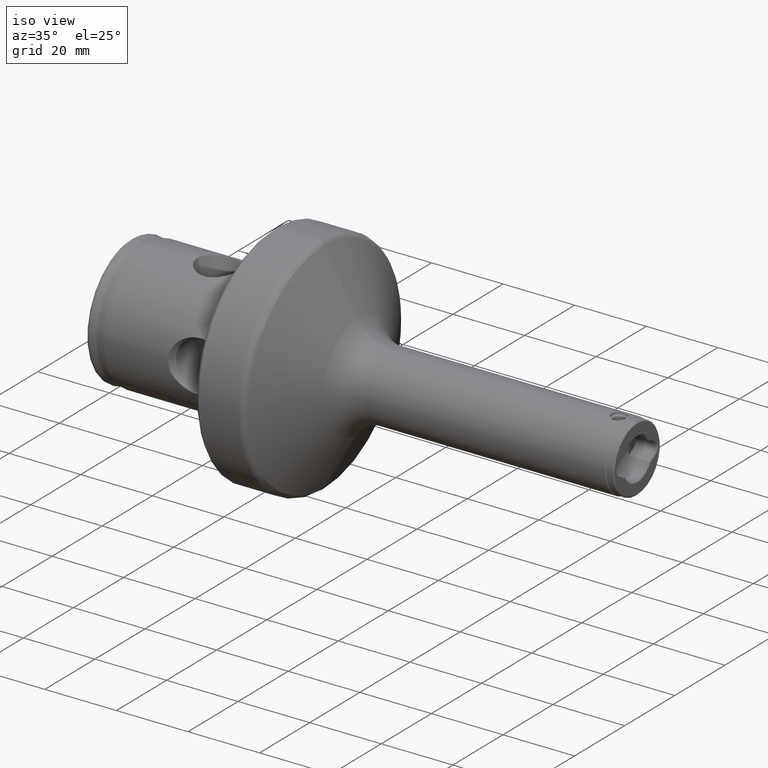
[diagram: clean part render]
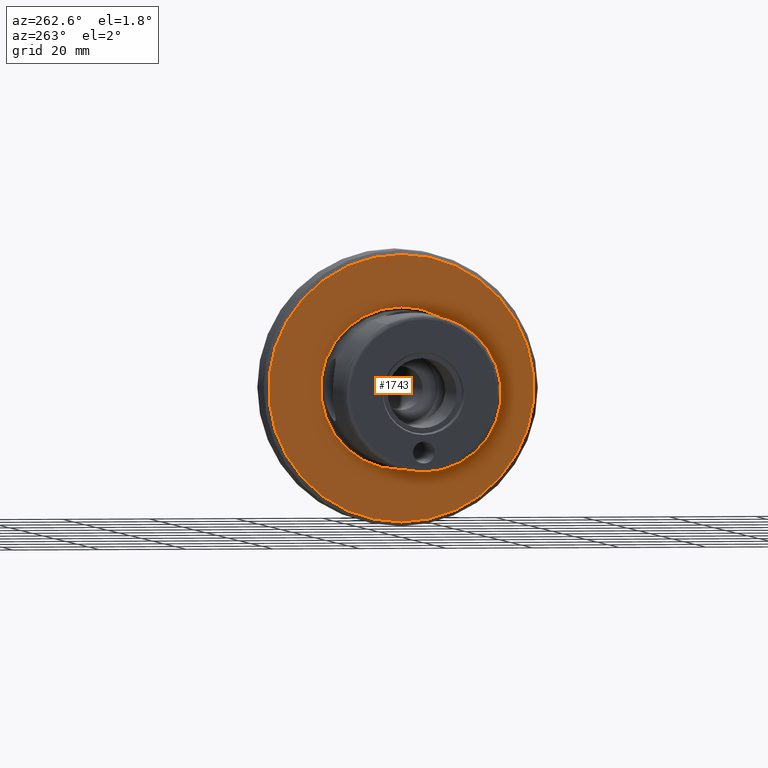
[diagram: tour spotlight — one face highlighted and labeled with its STEP entity id]
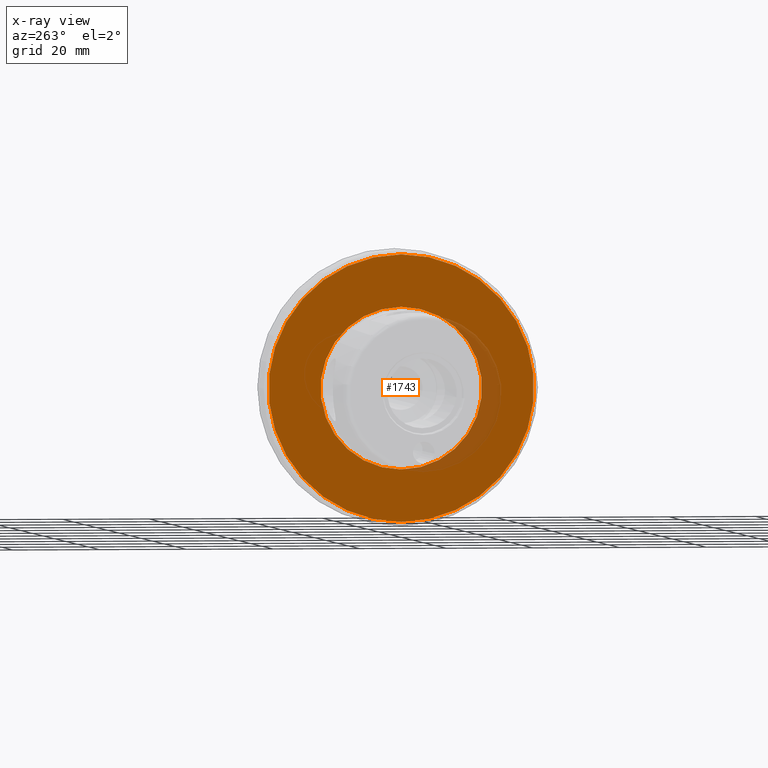
[diagram: x-ray of the same camera — body ghosted, this tour face saturated]
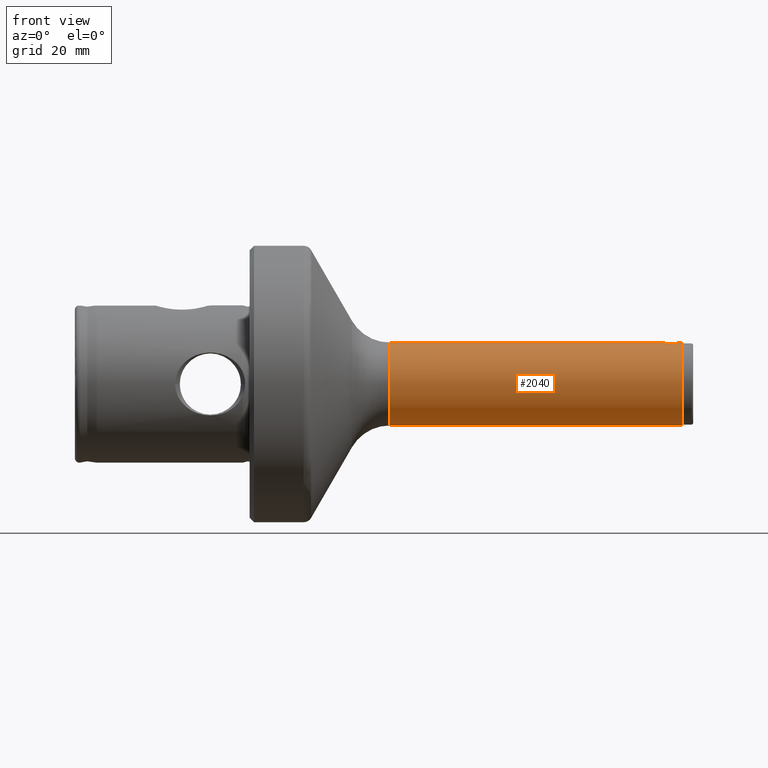
[diagram: tour spotlight — one face highlighted and labeled with its STEP entity id]
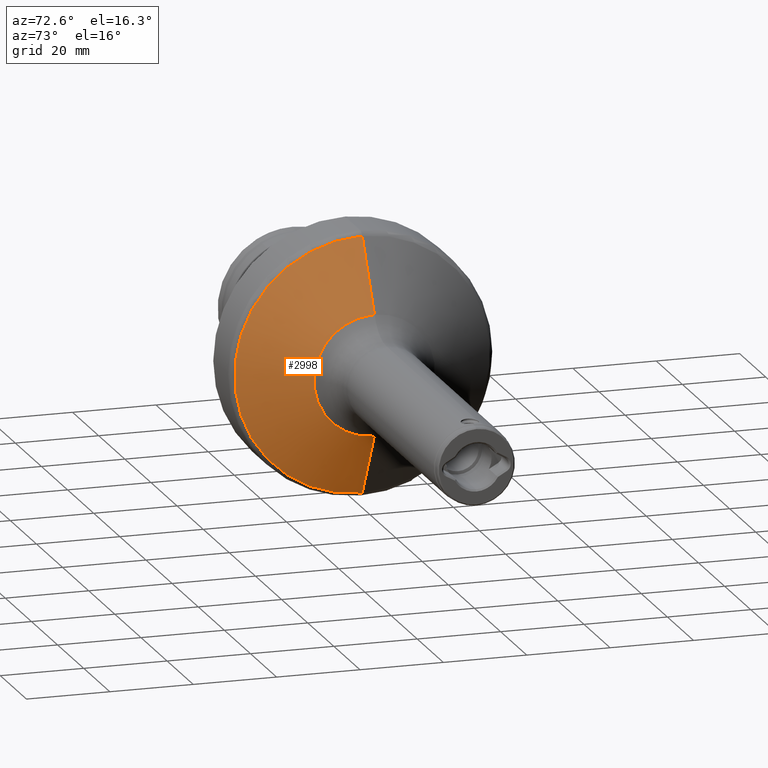
[diagram: tour spotlight — one face highlighted and labeled with its STEP entity id]
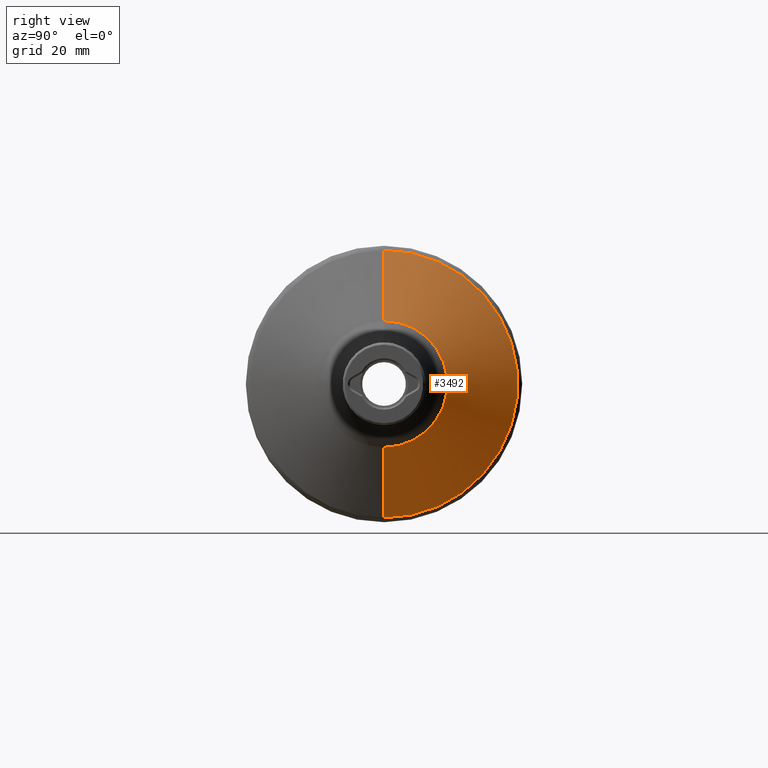
[diagram: tour spotlight — one face highlighted and labeled with its STEP entity id]
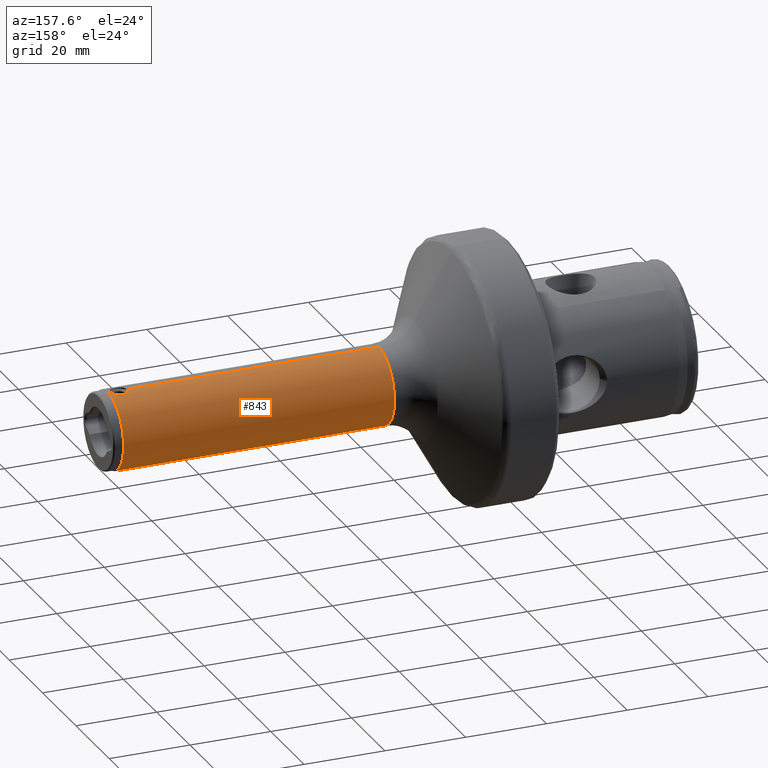
[diagram: tour spotlight — one face highlighted and labeled with its STEP entity id]
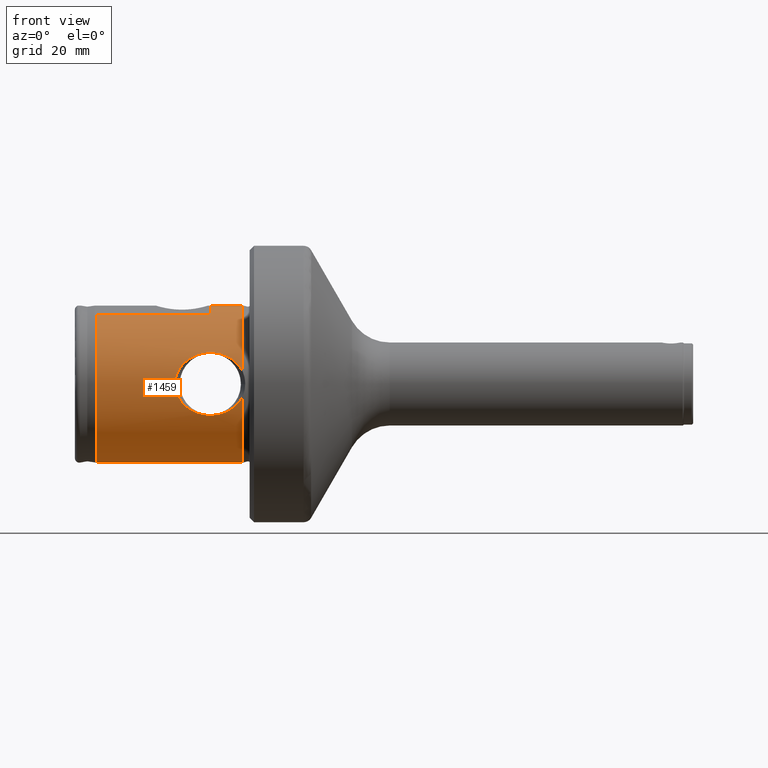
[diagram: tour spotlight — one face highlighted and labeled with its STEP entity id]
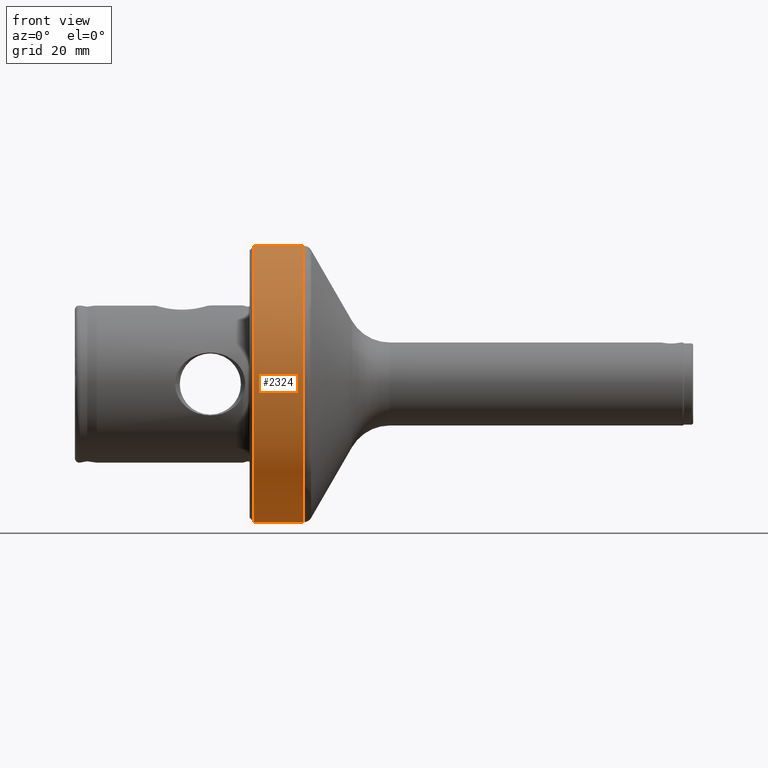
[diagram: tour spotlight — one face highlighted and labeled with its STEP entity id]
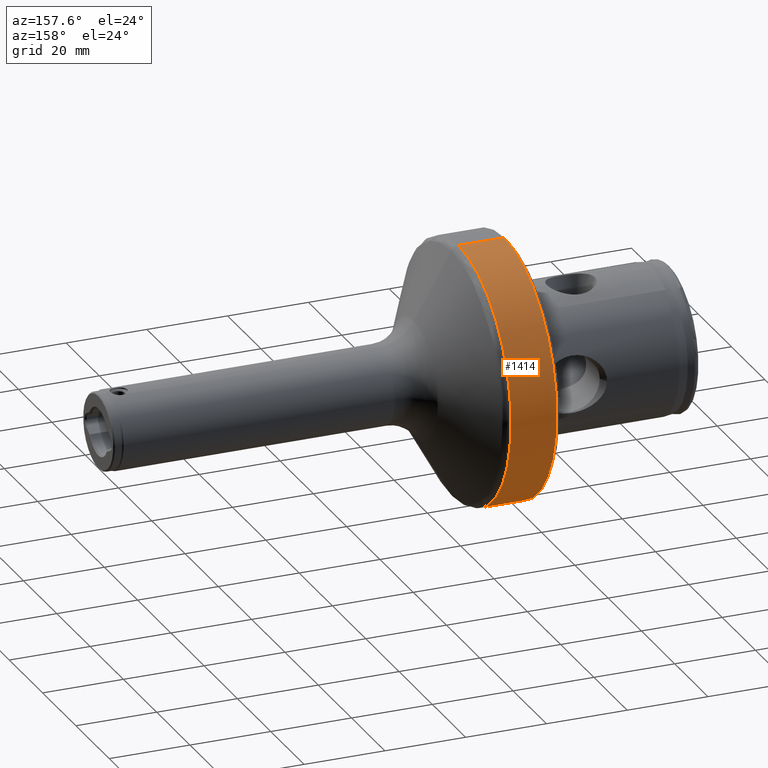
[diagram: tour spotlight — one face highlighted and labeled with its STEP entity id]
A machine part: a face-by-face anatomy tour. The part has 108 B-rep faces; the first image is the clean iso view, then the 8 largest visible faces are spotlighted one at a time (largest first), each with its STEP entity span.

Face 1 — auxiliary view, entity #1743. An x-ray twin of the same camera follows (body ghosted, this face saturated) — the face is partly hidden behind the body. In plain terms, the highlighted planar face has unit normal (1, 0, 0).
Definition (entity closure, byte-faithful):
#193 = CARTESIAN_POINT ( 'NONE',  ( 40.00000000000000000, 3.812937809145284600E-015, 30.63500000000000200 ) ) ;
#246 = CARTESIAN_POINT ( 'NONE',  ( 40.00000000000000000, 0.0000000000000000000, 0.0000000000000000000 ) ) ;
#253 = DIRECTION ( 'NONE',  ( -1.000000000000000000, -0.0000000000000000000, -0.0000000000000000000 ) ) ;
#528 = CARTESIAN_POINT ( 'NONE',  ( 40.00000000000000000, 0.0000000000000000000, 0.0000000000000000000 ) ) ;
#562 = DIRECTION ( 'NONE',  ( 0.0000000000000000000, 0.0000000000000000000, 1.000000000000000000 ) ) ;
#610 = EDGE_LOOP ( 'NONE', ( #629, #2570 ) ) ;
#629 = ORIENTED_EDGE ( 'NONE', *, *, #1712, .T. ) ;
#632 = EDGE_CURVE ( 'NONE', #3065, #1223, #2504, .T. ) ;
#668 = EDGE_LOOP ( 'NONE', ( #2293, #705 ) ) ;
#705 = ORIENTED_EDGE ( 'NONE', *, *, #3435, .F. ) ;
#769 = CIRCLE ( 'NONE', #893, 30.63500000000000200 ) ;
#805 = EDGE_CURVE ( 'NONE', #1150, #2475, #1296, .T. ) ;
#826 = DIRECTION ( 'NONE',  ( 0.0000000000000000000, 0.0000000000000000000, 1.000000000000000000 ) ) ;
#893 = AXIS2_PLACEMENT_3D ( 'NONE', #528, #2657, #826 ) ;
#1150 = VERTEX_POINT ( 'NONE', #1993 ) ;
#1223 = VERTEX_POINT ( 'NONE', #3852 ) ;
#1296 = CIRCLE ( 'NONE', #2626, 18.63903132955060100 ) ;
#1300 = CARTESIAN_POINT ( 'NONE',  ( 40.00000000000000000, 0.0000000000000000000, 0.0000000000000000000 ) ) ;
#1399 = AXIS2_PLACEMENT_3D ( 'NONE', #2089, #253, #2407 ) ;
#1464 = AXIS2_PLACEMENT_3D ( 'NONE', #1300, #3442, #1623 ) ;
#1623 = DIRECTION ( 'NONE',  ( 0.0000000000000000000, 0.0000000000000000000, 1.000000000000000000 ) ) ;
#1712 = EDGE_CURVE ( 'NONE', #1223, #3065, #769, .T. ) ;
#1743 = ADVANCED_FACE ( 'NONE', ( #3831, #3031 ), #1775, .F. ) ;
#1760 = CARTESIAN_POINT ( 'NONE',  ( 40.00000000000000000, 2.282623005694137900E-015, -18.63903132955060100 ) ) ;
#1775 = PLANE ( 'NONE',  #2328 ) ;
#1993 = CARTESIAN_POINT ( 'NONE',  ( 40.00000000000000000, 0.0000000000000000000, 18.63903132955060100 ) ) ;
#2076 = DIRECTION ( 'NONE',  ( 0.0000000000000000000, 0.0000000000000000000, -1.000000000000000000 ) ) ;
#2089 = CARTESIAN_POINT ( 'NONE',  ( 40.00000000000000000, 0.0000000000000000000, 0.0000000000000000000 ) ) ;
#2293 = ORIENTED_EDGE ( 'NONE', *, *, #805, .F. ) ;
#2328 = AXIS2_PLACEMENT_3D ( 'NONE', #3296, #3887, #2076 ) ;
#2397 = DIRECTION ( 'NONE',  ( -1.000000000000000000, -0.0000000000000000000, -0.0000000000000000000 ) ) ;
#2407 = DIRECTION ( 'NONE',  ( 0.0000000000000000000, 0.0000000000000000000, 1.000000000000000000 ) ) ;
#2475 = VERTEX_POINT ( 'NONE', #1760 ) ;
#2504 = CIRCLE ( 'NONE', #1399, 30.63500000000000200 ) ;
#2570 = ORIENTED_EDGE ( 'NONE', *, *, #632, .T. ) ;
#2626 = AXIS2_PLACEMENT_3D ( 'NONE', #246, #2397, #562 ) ;
#2657 = DIRECTION ( 'NONE',  ( -1.000000000000000000, -0.0000000000000000000, -0.0000000000000000000 ) ) ;
#2896 = CIRCLE ( 'NONE', #1464, 18.63903132955060100 ) ;
#3031 = FACE_OUTER_BOUND ( 'NONE', #610, .T. ) ;
#3065 = VERTEX_POINT ( 'NONE', #193 ) ;
#3296 = CARTESIAN_POINT ( 'NONE',  ( 40.00000000000000000, 18.63903132955060100, 0.0000000000000000000 ) ) ;
#3435 = EDGE_CURVE ( 'NONE', #2475, #1150, #2896, .T. ) ;
#3442 = DIRECTION ( 'NONE',  ( -1.000000000000000000, -0.0000000000000000000, -0.0000000000000000000 ) ) ;
#3831 = FACE_BOUND ( 'NONE', #668, .T. ) ;
#3852 = CARTESIAN_POINT ( 'NONE',  ( 40.00000000000000000, 0.0000000000000000000, -30.63500000000000200 ) ) ;
#3887 = DIRECTION ( 'NONE',  ( 1.000000000000000000, 0.0000000000000000000, 0.0000000000000000000 ) ) ;

Face 2 — front view, entity #2040. In plain terms, the highlighted cylindrical surface (partial cylindrical patch) has radius 9.5 mm, axis along (-1, -0, -0).
Definition (entity closure, byte-faithful):
#118 = CARTESIAN_POINT ( 'NONE',  ( 136.7248477382312000, -2.086526060230241300, 9.268072944804293600 ) ) ;
#134 = CARTESIAN_POINT ( 'NONE',  ( 134.4177803230763900, -0.5468619318997174400, 9.485210675662546700 ) ) ;
#151 = AXIS2_PLACEMENT_3D ( 'NONE', #821, #2966, #1128 ) ;
#273 = AXIS2_PLACEMENT_3D ( 'NONE', #2347, #515, #2645 ) ;
#286 = EDGE_CURVE ( 'NONE', #2999, #3767, #3277, .T. ) ;
#414 = CARTESIAN_POINT ( 'NONE',  ( 138.5362942822397900, -0.2760188974788846900, 9.496943657787079800 ) ) ;
#427 = CARTESIAN_POINT ( 'NONE',  ( 136.3133988211970700, -2.100055153878535000, 9.264975356356117700 ) ) ;
#431 = VERTEX_POINT ( 'NONE', #1900 ) ;
#444 = CARTESIAN_POINT ( 'NONE',  ( 134.3499999999999900, -0.1372970891052265100, 9.500000000000000000 ) ) ;
#515 = DIRECTION ( 'NONE',  ( -1.000000000000000000, -0.0000000000000000000, -0.0000000000000000000 ) ) ;
#621 = EDGE_LOOP ( 'NONE', ( #1653, #2938, #3094, #1073, #1861, #3524 ) ) ;
#651 = DIRECTION ( 'NONE',  ( -1.000000000000000000, -0.0000000000000000000, -0.0000000000000000000 ) ) ;
#691 = VERTEX_POINT ( 'NONE', #2701 ) ;
#725 = CARTESIAN_POINT ( 'NONE',  ( 138.4420746423675200, -0.6786548630611317600, 9.476586471102736600 ) ) ;
#726 = B_SPLINE_CURVE_WITH_KNOTS ( 'NONE', 3,
 ( #1642, #2249, #414, #2555, #725, #2858, #1027, #3176, #1335, #3470, #1652, #3775, #1961, #118, #2263, #427, #2567, #736, #2871, #1041, #3192, #1347, #3485, #1662, #3790, #1972, #134, #2276, #444, #2582 ),
 .UNSPECIFIED., .F., .F.,
 ( 4, 2, 2, 2, 2, 2, 2, 2, 2, 2, 2, 2, 2, 2, 4 ),
 ( 9.047209756046294700E-019, 0.0004116214865654662800, 0.0008232429731309315900, 0.001234864459696396400, 0.001646485946261861500, 0.002469728919392791100, 0.002881350405958255700, 0.003292971892523719900, 0.003704593379089184900, 0.004116214865654650400, 0.004939457838785502400, 0.005351079325350929300, 0.005762700811916355300, 0.006174322298481782100, 0.006585943785047208100 ),
 .UNSPECIFIED. ) ;
#736 = CARTESIAN_POINT ( 'NONE',  ( 135.9040594977493900, -2.032450617070282700, 9.280081075379206000 ) ) ;
#807 = FACE_OUTER_BOUND ( 'NONE', #621, .T. ) ;
#821 = CARTESIAN_POINT ( 'NONE',  ( 72.05315090040849700, 0.0000000000000000000, 0.0000000000000000000 ) ) ;
#918 = CARTESIAN_POINT ( 'NONE',  ( 141.5000000000000300, 0.0000000000000000000, 9.500000000000000000 ) ) ;
#928 = VECTOR ( 'NONE', #651, 1000.000000000000000 ) ;
#1027 = CARTESIAN_POINT ( 'NONE',  ( 138.2719359909828500, -1.053256885229290100, 9.442131192824982500 ) ) ;
#1032 = VERTEX_POINT ( 'NONE', #2194 ) ;
#1041 = CARTESIAN_POINT ( 'NONE',  ( 135.3907542586654200, -1.834143167344677300, 9.321886580396082400 ) ) ;
#1073 = ORIENTED_EDGE ( 'NONE', *, *, #2322, .T. ) ;
#1128 = DIRECTION ( 'NONE',  ( 0.0000000000000000000, 0.0000000000000000000, 1.000000000000000000 ) ) ;
#1335 = CARTESIAN_POINT ( 'NONE',  ( 138.0310885625001400, -1.388812109673902300, 9.398443985518893500 ) ) ;
#1347 = CARTESIAN_POINT ( 'NONE',  ( 134.8674136997937600, -1.387234782049691800, 9.398687148176662700 ) ) ;
#1470 = CARTESIAN_POINT ( 'NONE',  ( 141.5000000000000300, 0.0000000000000000000, 0.0000000000000000000 ) ) ;
#1523 = DIRECTION ( 'NONE',  ( 0.0000000000000000000, 0.0000000000000000000, 1.000000000000000000 ) ) ;
#1613 = CIRCLE ( 'NONE', #151, 9.500000000000000000 ) ;
#1642 = CARTESIAN_POINT ( 'NONE',  ( 138.5500000000000100, 9.940766882334315700E-016, 9.500000000000000000 ) ) ;
#1652 = CARTESIAN_POINT ( 'NONE',  ( 137.5077662578519300, -1.834637390121638600, 9.321779675950804000 ) ) ;
#1653 = ORIENTED_EDGE ( 'NONE', *, *, #286, .F. ) ;
#1662 = CARTESIAN_POINT ( 'NONE',  ( 134.6288436882965700, -1.054542790992835800, 9.441982394056600100 ) ) ;
#1674 = EDGE_CURVE ( 'NONE', #2999, #3808, #2496, .T. ) ;
#1841 = DIRECTION ( 'NONE',  ( -1.000000000000000000, -0.0000000000000000000, -0.0000000000000000000 ) ) ;
#1861 = ORIENTED_EDGE ( 'NONE', *, *, #2057, .T. ) ;
#1900 = CARTESIAN_POINT ( 'NONE',  ( 134.3500000000000200, 6.446082223704871400E-022, 9.500000000000000000 ) ) ;
#1961 = CARTESIAN_POINT ( 'NONE',  ( 136.9961499385503000, -2.032449882248581000, 9.280081604510867200 ) ) ;
#1972 = CARTESIAN_POINT ( 'NONE',  ( 134.4576516862243800, -0.6777996331251804300, 9.476644893599200300 ) ) ;
#2040 = ADVANCED_FACE ( 'NONE', ( #807 ), #3155, .T. ) ;
#2045 = AXIS2_PLACEMENT_3D ( 'NONE', #1470, #3355, #1523 ) ;
#2057 = EDGE_CURVE ( 'NONE', #431, #1032, #3064, .T. ) ;
#2134 = DIRECTION ( 'NONE',  ( -1.000000000000000000, -0.0000000000000000000, -0.0000000000000000000 ) ) ;
#2194 = CARTESIAN_POINT ( 'NONE',  ( 72.05315090040849700, 0.0000000000000000000, 9.500000000000000000 ) ) ;
#2249 = CARTESIAN_POINT ( 'NONE',  ( 138.5500000000000400, -0.1392149469101416900, 9.500000000000003600 ) ) ;
#2263 = CARTESIAN_POINT ( 'NONE',  ( 136.5882917335934500, -2.099944505886253100, 9.265000435802262400 ) ) ;
#2276 = CARTESIAN_POINT ( 'NONE',  ( 134.3637581581521700, -0.2767124232123751600, 9.496931597579489900 ) ) ;
#2322 = EDGE_CURVE ( 'NONE', #691, #431, #726, .T. ) ;
#2347 = CARTESIAN_POINT ( 'NONE',  ( 139.1343145750507800, 0.0000000000000000000, 0.0000000000000000000 ) ) ;
#2478 = CARTESIAN_POINT ( 'NONE',  ( 141.5000000000000300, 1.163414459189985500E-015, -9.500000000000000000 ) ) ;
#2496 = CIRCLE ( 'NONE', #273, 9.500000000000000000 ) ;
#2532 = VECTOR ( 'NONE', #1841, 1000.000000000000000 ) ;
#2555 = CARTESIAN_POINT ( 'NONE',  ( 138.4826719230115700, -0.5450276298248524200, 9.485308121177464400 ) ) ;
#2567 = CARTESIAN_POINT ( 'NONE',  ( 136.1737407394759300, -2.086285542250078800, 9.268126720790933200 ) ) ;
#2582 = CARTESIAN_POINT ( 'NONE',  ( 134.3500000000000200, 6.446082223704871400E-022, 9.500000000000000000 ) ) ;
#2645 = DIRECTION ( 'NONE',  ( 0.0000000000000000000, 0.0000000000000000000, 1.000000000000000000 ) ) ;
#2653 = CARTESIAN_POINT ( 'NONE',  ( 72.05315090040849700, 1.163414459189985500E-015, -9.500000000000000000 ) ) ;
#2701 = CARTESIAN_POINT ( 'NONE',  ( 138.5500000000000100, 9.940766882334315700E-016, 9.500000000000000000 ) ) ;
#2716 = VECTOR ( 'NONE', #2134, 1000.000000000000000 ) ;
#2744 = CARTESIAN_POINT ( 'NONE',  ( 141.5000000000000300, 0.0000000000000000000, 9.500000000000000000 ) ) ;
#2858 = CARTESIAN_POINT ( 'NONE',  ( 138.3364863009279600, -0.9327932462938012300, 9.454954274194699700 ) ) ;
#2871 = CARTESIAN_POINT ( 'NONE',  ( 135.7729390630887000, -1.992638743581472100, 9.288826808677157500 ) ) ;
#2938 = ORIENTED_EDGE ( 'NONE', *, *, #1674, .T. ) ;
#2966 = DIRECTION ( 'NONE',  ( 1.000000000000000000, 0.0000000000000000000, 0.0000000000000000000 ) ) ;
#2981 = EDGE_CURVE ( 'NONE', #3808, #691, #3522, .T. ) ;
#2999 = VERTEX_POINT ( 'NONE', #3811 ) ;
#3064 = LINE ( 'NONE', #918, #2532 ) ;
#3094 = ORIENTED_EDGE ( 'NONE', *, *, #2981, .T. ) ;
#3155 = CYLINDRICAL_SURFACE ( 'NONE', #2045, 9.500000000000000000 ) ;
#3176 = CARTESIAN_POINT ( 'NONE',  ( 138.1195097788536000, -1.281225163596839900, 9.413907457000396700 ) ) ;
#3192 = CARTESIAN_POINT ( 'NONE',  ( 135.1597744580110700, -1.679677648632348600, 9.352413848627701800 ) ) ;
#3277 = LINE ( 'NONE', #2478, #928 ) ;
#3355 = DIRECTION ( 'NONE',  ( -1.000000000000000000, -0.0000000000000000000, -0.0000000000000000000 ) ) ;
#3470 = CARTESIAN_POINT ( 'NONE',  ( 137.7413887614666500, -1.678355010282611500, 9.352610232395649700 ) ) ;
#3485 = CARTESIAN_POINT ( 'NONE',  ( 134.7808530824797200, -1.281647134520577300, 9.413844732641655000 ) ) ;
#3522 = LINE ( 'NONE', #2744, #2716 ) ;
#3524 = ORIENTED_EDGE ( 'NONE', *, *, #3684, .T. ) ;
#3640 = CARTESIAN_POINT ( 'NONE',  ( 139.1343145750507800, 0.0000000000000000000, 9.500000000000000000 ) ) ;
#3684 = EDGE_CURVE ( 'NONE', #1032, #3767, #1613, .T. ) ;
#3767 = VERTEX_POINT ( 'NONE', #2653 ) ;
#3775 = CARTESIAN_POINT ( 'NONE',  ( 137.1289717834510200, -1.991905687940048300, 9.288981612663603100 ) ) ;
#3790 = CARTESIAN_POINT ( 'NONE',  ( 134.5629069109319900, -0.9315276803514690500, 9.455076253673652800 ) ) ;
#3808 = VERTEX_POINT ( 'NONE', #3640 ) ;
#3811 = CARTESIAN_POINT ( 'NONE',  ( 139.1343145750507800, 1.163414459189985500E-015, -9.500000000000000000 ) ) ;

Face 3 — auxiliary view, entity #2998. In plain terms, the highlighted conical surface has half-angle 60 deg.
Definition (entity closure, byte-faithful):
#194 = EDGE_LOOP ( 'NONE', ( #3613, #3944, #2398, #1619 ) ) ;
#222 = CARTESIAN_POINT ( 'NONE',  ( 63.39289686256407900, 2.763721663975791900E-015, -14.50000000000005200 ) ) ;
#324 = VECTOR ( 'NONE', #1916, 1000.000000000000000 ) ;
#420 = LINE ( 'NONE', #3436, #324 ) ;
#640 = DIRECTION ( 'NONE',  ( -1.000000000000000000, -0.0000000000000000000, -0.0000000000000000000 ) ) ;
#737 = VERTEX_POINT ( 'NONE', #2434 ) ;
#801 = FACE_OUTER_BOUND ( 'NONE', #194, .T. ) ;
#951 = EDGE_CURVE ( 'NONE', #737, #2114, #3368, .T. ) ;
#1114 = AXIS2_PLACEMENT_3D ( 'NONE', #3090, #1248, #3394 ) ;
#1120 = AXIS2_PLACEMENT_3D ( 'NONE', #1363, #1683, #3212 ) ;
#1248 = DIRECTION ( 'NONE',  ( 1.000000000000000000, 0.0000000000000000000, 0.0000000000000000000 ) ) ;
#1313 = VERTEX_POINT ( 'NONE', #222 ) ;
#1363 = CARTESIAN_POINT ( 'NONE',  ( -928.2355242341864100, 0.0000000000000000000, 0.0000000000000000000 ) ) ;
#1426 = LINE ( 'NONE', #3287, #2144 ) ;
#1619 = ORIENTED_EDGE ( 'NONE', *, *, #951, .T. ) ;
#1683 = DIRECTION ( 'NONE',  ( -1.000000000000000000, -0.0000000000000000000, -0.0000000000000000000 ) ) ;
#1763 = DIRECTION ( 'NONE',  ( -0.4999999999999951200, 0.0000000000000000000, 0.8660254037844414800 ) ) ;
#1768 = CIRCLE ( 'NONE', #3940, 14.50000000000005200 ) ;
#1864 = CARTESIAN_POINT ( 'NONE',  ( 54.07735026918962300, 3.751705469187915400E-015, -30.63499999999998700 ) ) ;
#1916 = DIRECTION ( 'NONE',  ( -0.4999999999999951200, 1.060575238724910400E-016, -0.8660254037844414800 ) ) ;
#2114 = VERTEX_POINT ( 'NONE', #1864 ) ;
#2144 = VECTOR ( 'NONE', #1763, 1000.000000000000000 ) ;
#2240 = EDGE_CURVE ( 'NONE', #1313, #2114, #420, .T. ) ;
#2398 = ORIENTED_EDGE ( 'NONE', *, *, #3138, .T. ) ;
#2434 = CARTESIAN_POINT ( 'NONE',  ( 54.07735026918962300, 0.0000000000000000000, 30.63499999999998700 ) ) ;
#2469 = CARTESIAN_POINT ( 'NONE',  ( 63.39289686256407900, 0.0000000000000000000, 0.0000000000000000000 ) ) ;
#2668 = EDGE_CURVE ( 'NONE', #1313, #3415, #1768, .T. ) ;
#2771 = DIRECTION ( 'NONE',  ( 0.0000000000000000000, 0.0000000000000000000, 1.000000000000000000 ) ) ;
#2998 = ADVANCED_FACE ( 'NONE', ( #801 ), #3861, .T. ) ;
#3090 = CARTESIAN_POINT ( 'NONE',  ( 54.07735026918962300, 0.0000000000000000000, 0.0000000000000000000 ) ) ;
#3138 = EDGE_CURVE ( 'NONE', #3415, #737, #1426, .T. ) ;
#3212 = DIRECTION ( 'NONE',  ( 0.0000000000000000000, 0.0000000000000000000, 1.000000000000000000 ) ) ;
#3287 = CARTESIAN_POINT ( 'NONE',  ( 71.76447576581357200, 0.0000000000000000000, 0.0000000000000000000 ) ) ;
#3368 = CIRCLE ( 'NONE', #1114, 30.63499999999998700 ) ;
#3394 = DIRECTION ( 'NONE',  ( 0.0000000000000000000, 0.0000000000000000000, -1.000000000000000000 ) ) ;
#3415 = VERTEX_POINT ( 'NONE', #3428 ) ;
#3428 = CARTESIAN_POINT ( 'NONE',  ( 63.39289686256407900, 0.0000000000000000000, 14.50000000000005200 ) ) ;
#3436 = CARTESIAN_POINT ( 'NONE',  ( 71.76447576581357200, 0.0000000000000000000, 0.0000000000000000000 ) ) ;
#3613 = ORIENTED_EDGE ( 'NONE', *, *, #2240, .F. ) ;
#3861 = CONICAL_SURFACE ( 'NONE', #1120, 1732.050807568899900, 1.047197551196603400 ) ;
#3940 = AXIS2_PLACEMENT_3D ( 'NONE', #2469, #640, #2771 ) ;
#3944 = ORIENTED_EDGE ( 'NONE', *, *, #2668, .T. ) ;

Face 4 — right view, entity #3492. In plain terms, the highlighted conical surface has half-angle 60 deg.
Definition (entity closure, byte-faithful):
#38 = ORIENTED_EDGE ( 'NONE', *, *, #3850, .T. ) ;
#222 = CARTESIAN_POINT ( 'NONE',  ( 63.39289686256407900, 2.763721663975791900E-015, -14.50000000000005200 ) ) ;
#324 = VECTOR ( 'NONE', #1916, 1000.000000000000000 ) ;
#420 = LINE ( 'NONE', #3436, #324 ) ;
#461 = FACE_OUTER_BOUND ( 'NONE', #888, .T. ) ;
#581 = CARTESIAN_POINT ( 'NONE',  ( 54.07735026918962300, 0.0000000000000000000, 0.0000000000000000000 ) ) ;
#737 = VERTEX_POINT ( 'NONE', #2434 ) ;
#879 = DIRECTION ( 'NONE',  ( 0.0000000000000000000, 0.0000000000000000000, -1.000000000000000000 ) ) ;
#888 = EDGE_LOOP ( 'NONE', ( #38, #900, #3157, #2764 ) ) ;
#900 = ORIENTED_EDGE ( 'NONE', *, *, #2240, .T. ) ;
#1264 = AXIS2_PLACEMENT_3D ( 'NONE', #581, #2707, #879 ) ;
#1313 = VERTEX_POINT ( 'NONE', #222 ) ;
#1315 = DIRECTION ( 'NONE',  ( 0.0000000000000000000, 0.0000000000000000000, 1.000000000000000000 ) ) ;
#1426 = LINE ( 'NONE', #3287, #2144 ) ;
#1537 = CARTESIAN_POINT ( 'NONE',  ( 63.39289686256407900, 0.0000000000000000000, 0.0000000000000000000 ) ) ;
#1763 = DIRECTION ( 'NONE',  ( -0.4999999999999951200, 0.0000000000000000000, 0.8660254037844414800 ) ) ;
#1846 = DIRECTION ( 'NONE',  ( 0.0000000000000000000, 0.0000000000000000000, 1.000000000000000000 ) ) ;
#1864 = CARTESIAN_POINT ( 'NONE',  ( 54.07735026918962300, 3.751705469187915400E-015, -30.63499999999998700 ) ) ;
#1894 = CONICAL_SURFACE ( 'NONE', #2075, 1732.050807568899900, 1.047197551196603400 ) ;
#1916 = DIRECTION ( 'NONE',  ( -0.4999999999999951200, 1.060575238724910400E-016, -0.8660254037844414800 ) ) ;
#1939 = CARTESIAN_POINT ( 'NONE',  ( -928.2355242341864100, 0.0000000000000000000, 0.0000000000000000000 ) ) ;
#2075 = AXIS2_PLACEMENT_3D ( 'NONE', #1939, #3745, #1315 ) ;
#2114 = VERTEX_POINT ( 'NONE', #1864 ) ;
#2144 = VECTOR ( 'NONE', #1763, 1000.000000000000000 ) ;
#2240 = EDGE_CURVE ( 'NONE', #1313, #2114, #420, .T. ) ;
#2434 = CARTESIAN_POINT ( 'NONE',  ( 54.07735026918962300, 0.0000000000000000000, 30.63499999999998700 ) ) ;
#2543 = EDGE_CURVE ( 'NONE', #2114, #737, #3348, .T. ) ;
#2707 = DIRECTION ( 'NONE',  ( 1.000000000000000000, 0.0000000000000000000, 0.0000000000000000000 ) ) ;
#2757 = CIRCLE ( 'NONE', #2808, 14.50000000000005200 ) ;
#2764 = ORIENTED_EDGE ( 'NONE', *, *, #3138, .F. ) ;
#2808 = AXIS2_PLACEMENT_3D ( 'NONE', #1537, #3662, #1846 ) ;
#3138 = EDGE_CURVE ( 'NONE', #3415, #737, #1426, .T. ) ;
#3157 = ORIENTED_EDGE ( 'NONE', *, *, #2543, .T. ) ;
#3287 = CARTESIAN_POINT ( 'NONE',  ( 71.76447576581357200, 0.0000000000000000000, 0.0000000000000000000 ) ) ;
#3348 = CIRCLE ( 'NONE', #1264, 30.63499999999998700 ) ;
#3415 = VERTEX_POINT ( 'NONE', #3428 ) ;
#3428 = CARTESIAN_POINT ( 'NONE',  ( 63.39289686256407900, 0.0000000000000000000, 14.50000000000005200 ) ) ;
#3436 = CARTESIAN_POINT ( 'NONE',  ( 71.76447576581357200, 0.0000000000000000000, 0.0000000000000000000 ) ) ;
#3492 = ADVANCED_FACE ( 'NONE', ( #461 ), #1894, .T. ) ;
#3662 = DIRECTION ( 'NONE',  ( -1.000000000000000000, -0.0000000000000000000, -0.0000000000000000000 ) ) ;
#3745 = DIRECTION ( 'NONE',  ( -1.000000000000000000, -0.0000000000000000000, -0.0000000000000000000 ) ) ;
#3850 = EDGE_CURVE ( 'NONE', #3415, #1313, #2757, .T. ) ;

Face 5 — auxiliary view, entity #843. In plain terms, the highlighted cylindrical surface (partial cylindrical patch) has radius 9.5 mm, axis along (-1, -0, -0).
Definition (entity closure, byte-faithful):
#31 = CIRCLE ( 'NONE', #840, 9.500000000000000000 ) ;
#198 = CARTESIAN_POINT ( 'NONE',  ( 135.3957960960623300, 1.821350511261983700, 9.324090034461473700 ) ) ;
#211 = CARTESIAN_POINT ( 'NONE',  ( 138.2835550598929000, 1.059687054724858700, 9.444116175105751400 ) ) ;
#286 = EDGE_CURVE ( 'NONE', #2999, #3767, #3277, .T. ) ;
#359 = CIRCLE ( 'NONE', #2886, 9.500000000000000000 ) ;
#393 = CYLINDRICAL_SURFACE ( 'NONE', #913, 9.500000000000000000 ) ;
#431 = VERTEX_POINT ( 'NONE', #1900 ) ;
#438 = CARTESIAN_POINT ( 'NONE',  ( 139.1343145750507800, 0.0000000000000000000, 0.0000000000000000000 ) ) ;
#500 = CARTESIAN_POINT ( 'NONE',  ( 134.3500000000000200, 0.2745217737029525500, 9.500000000000001800 ) ) ;
#504 = ORIENTED_EDGE ( 'NONE', *, *, #2057, .F. ) ;
#512 = CARTESIAN_POINT ( 'NONE',  ( 135.8987089390797700, 2.045081678725003000, 9.277897142853584400 ) ) ;
#527 = CARTESIAN_POINT ( 'NONE',  ( 138.4821178074817000, 0.5473327164365954200, 9.485188634999161600 ) ) ;
#553 = EDGE_CURVE ( 'NONE', #431, #691, #2849, .T. ) ;
#634 = ORIENTED_EDGE ( 'NONE', *, *, #3367, .T. ) ;
#651 = DIRECTION ( 'NONE',  ( -1.000000000000000000, -0.0000000000000000000, -0.0000000000000000000 ) ) ;
#691 = VERTEX_POINT ( 'NONE', #2701 ) ;
#742 = DIRECTION ( 'NONE',  ( 0.0000000000000000000, 0.0000000000000000000, 1.000000000000000000 ) ) ;
#812 = CARTESIAN_POINT ( 'NONE',  ( 136.5876940293405000, 2.100058893179655300, 9.264974508807222600 ) ) ;
#825 = CARTESIAN_POINT ( 'NONE',  ( 138.5500000000000100, 0.1391782389590355600, 9.500000000000001800 ) ) ;
#840 = AXIS2_PLACEMENT_3D ( 'NONE', #2797, #974, #3116 ) ;
#843 = ADVANCED_FACE ( 'NONE', ( #3550 ), #393, .T. ) ;
#913 = AXIS2_PLACEMENT_3D ( 'NONE', #3062, #3366, #2746 ) ;
#918 = CARTESIAN_POINT ( 'NONE',  ( 141.5000000000000300, 0.0000000000000000000, 9.500000000000000000 ) ) ;
#928 = VECTOR ( 'NONE', #651, 1000.000000000000000 ) ;
#974 = DIRECTION ( 'NONE',  ( 1.000000000000000000, 0.0000000000000000000, 0.0000000000000000000 ) ) ;
#1032 = VERTEX_POINT ( 'NONE', #2194 ) ;
#1052 = ORIENTED_EDGE ( 'NONE', *, *, #286, .T. ) ;
#1106 = CARTESIAN_POINT ( 'NONE',  ( 134.4053438730634300, 0.5516434125020919200, 9.487364435385190500 ) ) ;
#1119 = CARTESIAN_POINT ( 'NONE',  ( 136.9936422398375600, 2.033053135677751500, 9.279948556106502300 ) ) ;
#1218 = ORIENTED_EDGE ( 'NONE', *, *, #2981, .F. ) ;
#1417 = CARTESIAN_POINT ( 'NONE',  ( 134.6282636417209900, 1.053630872653135200, 9.442091440489132700 ) ) ;
#1435 = CARTESIAN_POINT ( 'NONE',  ( 137.3811151644104900, 1.887287309341667300, 9.310801749056521400 ) ) ;
#1736 = CARTESIAN_POINT ( 'NONE',  ( 134.8675822761753100, 1.387332104775669300, 9.398665961835250800 ) ) ;
#1747 = CARTESIAN_POINT ( 'NONE',  ( 137.7304284139389100, 1.670154737452359300, 9.352358983608622700 ) ) ;
#1841 = DIRECTION ( 'NONE',  ( -1.000000000000000000, -0.0000000000000000000, -0.0000000000000000000 ) ) ;
#1900 = CARTESIAN_POINT ( 'NONE',  ( 134.3500000000000200, 6.446082223704871400E-022, 9.500000000000000000 ) ) ;
#2037 = CARTESIAN_POINT ( 'NONE',  ( 135.1687057566769600, 1.669415651651474700, 9.352487585537824400 ) ) ;
#2048 = CARTESIAN_POINT ( 'NONE',  ( 138.1269939569532100, 1.293093440869777400, 9.413606880924982400 ) ) ;
#2057 = EDGE_CURVE ( 'NONE', #431, #1032, #3064, .T. ) ;
#2134 = DIRECTION ( 'NONE',  ( -1.000000000000000000, -0.0000000000000000000, -0.0000000000000000000 ) ) ;
#2194 = CARTESIAN_POINT ( 'NONE',  ( 72.05315090040849700, 0.0000000000000000000, 9.500000000000000000 ) ) ;
#2243 = EDGE_LOOP ( 'NONE', ( #3061, #1052, #634, #504, #3728, #1218 ) ) ;
#2346 = CARTESIAN_POINT ( 'NONE',  ( 135.5161786330326400, 1.886013754250475100, 9.311062545987162800 ) ) ;
#2357 = CARTESIAN_POINT ( 'NONE',  ( 138.4412883957240600, 0.6807978613048747400, 9.476422374385503400 ) ) ;
#2478 = CARTESIAN_POINT ( 'NONE',  ( 141.5000000000000300, 1.163414459189985500E-015, -9.500000000000000000 ) ) ;
#2532 = VECTOR ( 'NONE', #1841, 1000.000000000000000 ) ;
#2578 = DIRECTION ( 'NONE',  ( -1.000000000000000000, -0.0000000000000000000, -0.0000000000000000000 ) ) ;
#2644 = CARTESIAN_POINT ( 'NONE',  ( 136.1719260971563000, 2.099881641120095100, 9.265014684714110200 ) ) ;
#2653 = CARTESIAN_POINT ( 'NONE',  ( 72.05315090040849700, 1.163414459189985500E-015, -9.500000000000000000 ) ) ;
#2656 = CARTESIAN_POINT ( 'NONE',  ( 138.5362985485370500, 0.2764674525834843200, 9.496943839554971200 ) ) ;
#2701 = CARTESIAN_POINT ( 'NONE',  ( 138.5500000000000100, 9.940766882334315700E-016, 9.500000000000000000 ) ) ;
#2716 = VECTOR ( 'NONE', #2134, 1000.000000000000000 ) ;
#2744 = CARTESIAN_POINT ( 'NONE',  ( 141.5000000000000300, 0.0000000000000000000, 9.500000000000000000 ) ) ;
#2746 = DIRECTION ( 'NONE',  ( 0.0000000000000000000, 0.0000000000000000000, 1.000000000000000000 ) ) ;
#2797 = CARTESIAN_POINT ( 'NONE',  ( 72.05315090040849700, 0.0000000000000000000, 0.0000000000000000000 ) ) ;
#2849 = B_SPLINE_CURVE_WITH_KNOTS ( 'NONE', 3,
 ( #3853, #500, #1106, #3260, #1417, #3553, #1736, #3864, #2037, #198, #2346, #512, #2644, #812, #2957, #1119, #3269, #1435, #3566, #1747, #3873, #2048, #211, #2357, #527, #2656, #825, #2969 ),
 .UNSPECIFIED., .F., .F.,
 ( 4, 2, 2, 2, 2, 2, 2, 2, 2, 2, 2, 2, 2, 4 ),
 ( 0.006585943785047208100, 0.007408969686926257700, 0.007820482637865781200, 0.008231995588805307200, 0.008643508539744831600, 0.009055021490684355900, 0.009878047392563404600, 0.01028956034350288900, 0.01070107329444237200, 0.01111258624538185600, 0.01152409919632134100, 0.01234712509820036500, 0.01275863804913987900, 0.01317015100007939300 ),
 .UNSPECIFIED. ) ;
#2886 = AXIS2_PLACEMENT_3D ( 'NONE', #438, #2578, #742 ) ;
#2957 = CARTESIAN_POINT ( 'NONE',  ( 136.7242952422705300, 2.086531585548725400, 9.268070791646978900 ) ) ;
#2969 = CARTESIAN_POINT ( 'NONE',  ( 138.5500000000000100, 9.940766882334315700E-016, 9.500000000000000000 ) ) ;
#2981 = EDGE_CURVE ( 'NONE', #3808, #691, #3522, .T. ) ;
#2999 = VERTEX_POINT ( 'NONE', #3811 ) ;
#3061 = ORIENTED_EDGE ( 'NONE', *, *, #3541, .T. ) ;
#3062 = CARTESIAN_POINT ( 'NONE',  ( 141.5000000000000300, 0.0000000000000000000, 0.0000000000000000000 ) ) ;
#3064 = LINE ( 'NONE', #918, #2532 ) ;
#3116 = DIRECTION ( 'NONE',  ( 0.0000000000000000000, 0.0000000000000000000, 1.000000000000000000 ) ) ;
#3260 = CARTESIAN_POINT ( 'NONE',  ( 134.5626404397714600, 0.9309168455924814500, 9.455130481526120800 ) ) ;
#3269 = CARTESIAN_POINT ( 'NONE',  ( 137.1276083202989500, 1.992404527614520400, 9.288875432288737200 ) ) ;
#3277 = LINE ( 'NONE', #2478, #928 ) ;
#3366 = DIRECTION ( 'NONE',  ( -1.000000000000000000, -0.0000000000000000000, -0.0000000000000000000 ) ) ;
#3367 = EDGE_CURVE ( 'NONE', #3767, #1032, #31, .T. ) ;
#3522 = LINE ( 'NONE', #2744, #2716 ) ;
#3541 = EDGE_CURVE ( 'NONE', #3808, #2999, #359, .T. ) ;
#3550 = FACE_OUTER_BOUND ( 'NONE', #2243, .T. ) ;
#3553 = CARTESIAN_POINT ( 'NONE',  ( 134.7810049730279600, 1.281919254409561400, 9.413814944619421300 ) ) ;
#3566 = CARTESIAN_POINT ( 'NONE',  ( 137.5016721821841900, 1.822882166097594900, 9.323794078262498200 ) ) ;
#3640 = CARTESIAN_POINT ( 'NONE',  ( 139.1343145750507800, 0.0000000000000000000, 9.500000000000000000 ) ) ;
#3728 = ORIENTED_EDGE ( 'NONE', *, *, #553, .T. ) ;
#3767 = VERTEX_POINT ( 'NONE', #2653 ) ;
#3808 = VERTEX_POINT ( 'NONE', #3640 ) ;
#3811 = CARTESIAN_POINT ( 'NONE',  ( 139.1343145750507800, 1.163414459189985500E-015, -9.500000000000000000 ) ) ;
#3853 = CARTESIAN_POINT ( 'NONE',  ( 134.3500000000000200, 6.446082223704871400E-022, 9.500000000000000000 ) ) ;
#3864 = CARTESIAN_POINT ( 'NONE',  ( 135.0610619844897000, 1.581008352503596700, 9.368032067644499300 ) ) ;
#3873 = CARTESIAN_POINT ( 'NONE',  ( 137.8375060813918700, 1.582222082616753200, 9.367822296037351400 ) ) ;

Face 6 — front view, entity #1459. In plain terms, the highlighted cylindrical surface (partial cylindrical patch) has radius 18 mm, axis along (-1, -0, -0).
Definition (entity closure, byte-faithful):
#17 = LINE ( 'NONE', #1707, #827 ) ;
#51 = CIRCLE ( 'NONE', #1513, 17.99999999999999600 ) ;
#80 = CARTESIAN_POINT ( 'NONE',  ( 36.55175607009103100, -17.22400654163418600, -5.237374232844398000 ) ) ;
#92 = CARTESIAN_POINT ( 'NONE',  ( 28.66229112130640300, -16.62467098836315000, -6.902334032149218100 ) ) ;
#103 = CARTESIAN_POINT ( 'NONE',  ( 23.29266158553753400, -17.87338526429944700, -2.169438343282098700 ) ) ;
#125 = CIRCLE ( 'NONE', #792, 17.99999999999999600 ) ;
#138 = AXIS2_PLACEMENT_3D ( 'NONE', #2248, #2554, #3764 ) ;
#167 = CARTESIAN_POINT ( 'NONE',  ( 23.29503960607756200, -17.87255946622037300, 2.176647487686613300 ) ) ;
#180 = CARTESIAN_POINT ( 'NONE',  ( 28.67993101842047600, -16.62278497628824800, 6.906813726044728900 ) ) ;
#191 = CARTESIAN_POINT ( 'NONE',  ( 34.32204564670358600, -16.75839360627169900, 6.572304845395327900 ) ) ;
#254 = CARTESIAN_POINT ( 'NONE',  ( 0.0000000000000000000, 0.0000000000000000000, 17.99999999999999600 ) ) ;
#263 = EDGE_CURVE ( 'NONE', #1605, #463, #17, .T. ) ;
#274 = ORIENTED_EDGE ( 'NONE', *, *, #2727, .F. ) ;
#308 = CARTESIAN_POINT ( 'NONE',  ( 22.93190200199920200, -17.99999999999999600, 4.441690793177769600E-021 ) ) ;
#330 = DIRECTION ( 'NONE',  ( 1.000000000000000000, 0.0000000000000000000, 0.0000000000000000000 ) ) ;
#386 = CARTESIAN_POINT ( 'NONE',  ( 35.48057514054242700, -16.97279783775291100, -5.999213378136383700 ) ) ;
#399 = CARTESIAN_POINT ( 'NONE',  ( 27.41257878505567900, -16.80216269797455600, -6.459979171950007700 ) ) ;
#407 = CARTESIAN_POINT ( 'NONE',  ( 31.00000000000000000, 0.0000000000000000000, 17.99999999999999600 ) ) ;
#411 = CARTESIAN_POINT ( 'NONE',  ( 23.02413417728703800, -17.96727639894263400, -1.106253120157848700 ) ) ;
#413 = EDGE_CURVE ( 'NONE', #3097, #2068, #2708, .T. ) ;
#459 = CARTESIAN_POINT ( 'NONE',  ( 22.93190200199920200, -17.99999999999999600, 4.441690793177769600E-021 ) ) ;
#463 = VERTEX_POINT ( 'NONE', #3482 ) ;
#471 = DIRECTION ( 'NONE',  ( 1.000000000000000000, 0.0000000000000000000, 0.0000000000000000000 ) ) ;
#476 = CARTESIAN_POINT ( 'NONE',  ( 23.85847120594464200, -17.68492855341568800, 3.373394558111742800 ) ) ;
#488 = CARTESIAN_POINT ( 'NONE',  ( 29.76544652395585200, -16.53279694942170500, 7.118156694572547800 ) ) ;
#492 = ORIENTED_EDGE ( 'NONE', *, *, #1734, .T. ) ;
#505 = CARTESIAN_POINT ( 'NONE',  ( 35.50250194721001400, -16.97748648343946000, 5.985874656659777100 ) ) ;
#544 = CIRCLE ( 'NONE', #1365, 17.99999999999999600 ) ;
#660 = ORIENTED_EDGE ( 'NONE', *, *, #1759, .T. ) ;
#698 = CARTESIAN_POINT ( 'NONE',  ( 34.30740257987290700, -16.75609685185863300, -6.578115240560359600 ) ) ;
#710 = CARTESIAN_POINT ( 'NONE',  ( 26.26420708163042800, -17.02812404450211800, -5.840901414676892500 ) ) ;
#723 = CARTESIAN_POINT ( 'NONE',  ( 22.94326582020514800, -17.99594619479157800, -0.4417172871538094200 ) ) ;
#728 = CYLINDRICAL_SURFACE ( 'NONE', #138, 17.99999999999999600 ) ;
#782 = CARTESIAN_POINT ( 'NONE',  ( 24.62761903909061400, -17.44884491123164900, 4.431981430358424800 ) ) ;
#792 = AXIS2_PLACEMENT_3D ( 'NONE', #964, #3109, #1262 ) ;
#796 = CARTESIAN_POINT ( 'NONE',  ( 30.42950263124843200, -16.50379690978528300, 7.185063605685842300 ) ) ;
#806 = CARTESIAN_POINT ( 'NONE',  ( 36.56052000145321300, -17.22626953673155400, 5.229929271370539600 ) ) ;
#816 = CARTESIAN_POINT ( 'NONE',  ( 38.41455850893560600, 0.0000000000000000000, 0.0000000000000000000 ) ) ;
#827 = VECTOR ( 'NONE', #330, 1000.000000000000000 ) ;
#841 = CARTESIAN_POINT ( 'NONE',  ( 38.41455850893560600, 0.0000000000000000000, 0.0000000000000000000 ) ) ;
#964 = CARTESIAN_POINT ( 'NONE',  ( 5.000000000000000000, 0.0000000000000000000, 0.0000000000000000000 ) ) ;
#1003 = CARTESIAN_POINT ( 'NONE',  ( 33.04093780856270300, -16.59333215361803200, -6.977020613243097600 ) ) ;
#1013 = CARTESIAN_POINT ( 'NONE',  ( 25.56015308524299800, -17.19704328115419800, -5.318273061020192000 ) ) ;
#1025 = CARTESIAN_POINT ( 'NONE',  ( 22.93190200199920200, -17.99999999999999600, 4.441690793177769600E-021 ) ) ;
#1033 = EDGE_LOOP ( 'NONE', ( #3301, #492, #2758, #2371, #1373, #660, #1801, #2573, #274 ) ) ;
#1081 = CARTESIAN_POINT ( 'NONE',  ( 25.24843004934503900, -17.27764558184226800, 5.050242172774598100 ) ) ;
#1095 = CARTESIAN_POINT ( 'NONE',  ( 31.31196230718752500, -16.49474406451295000, 7.205793906403901200 ) ) ;
#1111 = CARTESIAN_POINT ( 'NONE',  ( 37.48454750326428800, -17.48229323643473500, 4.300980811526033100 ) ) ;
#1118 = CARTESIAN_POINT ( 'NONE',  ( 0.0000000000000000000, 2.204364238465235000E-015, -17.99999999999999600 ) ) ;
#1124 = DIRECTION ( 'NONE',  ( 0.0000000000000000000, 0.0000000000000000000, 1.000000000000000000 ) ) ;
#1147 = DIRECTION ( 'NONE',  ( 0.0000000000000000000, 0.0000000000000000000, 1.000000000000000000 ) ) ;
#1262 = DIRECTION ( 'NONE',  ( 0.0000000000000000000, 0.0000000000000000000, 1.000000000000000000 ) ) ;
#1278 = EDGE_CURVE ( 'NONE', #1721, #1876, #3838, .T. ) ;
#1284 = VECTOR ( 'NONE', #2090, 1000.000000000000000 ) ;
#1305 = CARTESIAN_POINT ( 'NONE',  ( 31.73633254173760700, -16.50562532435845900, -7.181103176937407200 ) ) ;
#1318 = CARTESIAN_POINT ( 'NONE',  ( 25.06975994152871900, -17.32577972285147900, -4.882950912793208300 ) ) ;
#1365 = AXIS2_PLACEMENT_3D ( 'NONE', #2306, #471, #2607 ) ;
#1373 = ORIENTED_EDGE ( 'NONE', *, *, #3082, .T. ) ;
#1396 = CARTESIAN_POINT ( 'NONE',  ( 25.75073583273174500, -17.14970568692032100, 5.468593516449462100 ) ) ;
#1397 = LINE ( 'NONE', #254, #1284 ) ;
#1410 = CARTESIAN_POINT ( 'NONE',  ( 32.41174086432555900, -16.54411024394628900, 7.091786777001734900 ) ) ;
#1424 = CARTESIAN_POINT ( 'NONE',  ( 38.22531472327443000, -17.71246892246847400, 3.229107380082117300 ) ) ;
#1434 = DIRECTION ( 'NONE',  ( -1.000000000000000000, -0.0000000000000000000, -0.0000000000000000000 ) ) ;
#1459 = ADVANCED_FACE ( 'NONE', ( #2458 ), #728, .T. ) ;
#1513 = AXIS2_PLACEMENT_3D ( 'NONE', #841, #2989, #1147 ) ;
#1525 = CIRCLE ( 'NONE', #1946, 17.99999999999999600 ) ;
#1559 = B_SPLINE_CURVE_WITH_KNOTS ( 'NONE', 3,
 ( #459, #2899, #3825, #1999, #167, #2309, #476, #2609, #782, #2916, #1081, #3241, #1396, #3532, #1714, #3842, #2017, #180, #2325, #488, #2624, #796, #2932, #1095, #3253, #1410, #3544, #1728, #3855, #2030, #191, #2334, #505, #2636, #806, #2945, #1111, #3263, #1424, #3557 ),
 .UNSPECIFIED., .F., .F.,
 ( 4, 2, 2, 2, 2, 2, 2, 2, 2, 2, 2, 2, 2, 2, 2, 2, 2, 2, 2, 4 ),
 ( 0.005951930373223755100, 0.007274197686235172500, 0.008596464999246589800, 0.009918732312258007200, 0.01124099962526942600, 0.01190213328177513200, 0.01256326693828083800, 0.01388553425129225800, 0.01520780156430367800, 0.01653006887731509700, 0.01719120253382081000, 0.01785233619032652900, 0.01917460350333796700, 0.01983573715984368900, 0.02049687081634941200, 0.02181913812936082600, 0.02314140544237224300, 0.02446367275538366100, 0.02578594006839508200, 0.02710820738140650200 ),
 .UNSPECIFIED. ) ;
#1575 = EDGE_CURVE ( 'NONE', #3509, #463, #544, .T. ) ;
#1605 = VERTEX_POINT ( 'NONE', #3237 ) ;
#1609 = CARTESIAN_POINT ( 'NONE',  ( 38.41455850893858300, -17.77522644697679200, -2.835722969314299600 ) ) ;
#1626 = CARTESIAN_POINT ( 'NONE',  ( 30.39909201430822700, -16.50099729352224600, -7.191464212161554000 ) ) ;
#1638 = CARTESIAN_POINT ( 'NONE',  ( 24.34074858595555900, -17.53461846900398100, -4.083252654465629100 ) ) ;
#1707 = CARTESIAN_POINT ( 'NONE',  ( 0.0000000000000000000, -8.500000000000000000, 15.86663165262242700 ) ) ;
#1714 = CARTESIAN_POINT ( 'NONE',  ( 26.65178746641845800, -16.94475705747026200, 6.076163919882772800 ) ) ;
#1721 = VERTEX_POINT ( 'NONE', #3875 ) ;
#1728 = CARTESIAN_POINT ( 'NONE',  ( 33.06632984982247300, -16.59899749722229600, 6.962452617244408300 ) ) ;
#1734 = EDGE_CURVE ( 'NONE', #1721, #3097, #51, .T. ) ;
#1759 = EDGE_CURVE ( 'NONE', #3447, #3509, #1397, .T. ) ;
#1801 = ORIENTED_EDGE ( 'NONE', *, *, #1575, .T. ) ;
#1876 = VERTEX_POINT ( 'NONE', #2589 ) ;
#1914 = CARTESIAN_POINT ( 'NONE',  ( 37.18323317712317800, -17.39446115788247100, -4.639958106280455600 ) ) ;
#1929 = CARTESIAN_POINT ( 'NONE',  ( 29.09011447363878100, -16.58064351969850500, -7.006314394120051000 ) ) ;
#1942 = CARTESIAN_POINT ( 'NONE',  ( 23.63709388327816500, -17.75758443946106600, -2.971962046660371100 ) ) ;
#1946 = AXIS2_PLACEMENT_3D ( 'NONE', #816, #2962, #1124 ) ;
#1999 = CARTESIAN_POINT ( 'NONE',  ( 23.16028841739990100, -17.91948188900300600, 1.756309570911909000 ) ) ;
#2017 = CARTESIAN_POINT ( 'NONE',  ( 27.84631252032698600, -16.73197632104198000, 6.637923214853056000 ) ) ;
#2030 = CARTESIAN_POINT ( 'NONE',  ( 33.91261362665141400, -16.69695338979934000, 6.725271214225778700 ) ) ;
#2068 = VERTEX_POINT ( 'NONE', #308 ) ;
#2090 = DIRECTION ( 'NONE',  ( -1.000000000000000000, -0.0000000000000000000, -0.0000000000000000000 ) ) ;
#2122 = VECTOR ( 'NONE', #1434, 1000.000000000000000 ) ;
#2218 = CARTESIAN_POINT ( 'NONE',  ( 38.41455850893560600, 0.0000000000000000000, 17.99999999999999600 ) ) ;
#2220 = CARTESIAN_POINT ( 'NONE',  ( 36.20853074206343100, -17.13760555766047100, -5.510798793975826700 ) ) ;
#2233 = CARTESIAN_POINT ( 'NONE',  ( 27.81968067271641600, -16.73591214434289000, -6.628057427295310300 ) ) ;
#2246 = CARTESIAN_POINT ( 'NONE',  ( 23.15995626466844500, -17.91960077692835200, -1.753618157681375000 ) ) ;
#2248 = CARTESIAN_POINT ( 'NONE',  ( 0.0000000000000000000, 0.0000000000000000000, 0.0000000000000000000 ) ) ;
#2306 = CARTESIAN_POINT ( 'NONE',  ( 31.00000000000000000, 0.0000000000000000000, 0.0000000000000000000 ) ) ;
#2309 = CARTESIAN_POINT ( 'NONE',  ( 23.64278849125274800, -17.75569677428627800, 2.983522786713074500 ) ) ;
#2325 = CARTESIAN_POINT ( 'NONE',  ( 29.10744282103609800, -16.57896270672707200, 7.010286325545902000 ) ) ;
#2334 = CARTESIAN_POINT ( 'NONE',  ( 35.11653427350414300, -16.89846424721143600, 6.203293748425248400 ) ) ;
#2371 = ORIENTED_EDGE ( 'NONE', *, *, #2816, .T. ) ;
#2458 = FACE_OUTER_BOUND ( 'NONE', #1033, .T. ) ;
#2529 = CARTESIAN_POINT ( 'NONE',  ( 35.10015966050625700, -16.89530342579888600, -6.211851895944372300 ) ) ;
#2542 = CARTESIAN_POINT ( 'NONE',  ( 26.63570597471756300, -16.94814475933928200, -6.066662298802851800 ) ) ;
#2553 = CARTESIAN_POINT ( 'NONE',  ( 22.98934012757171900, -17.97959825499482600, -0.8850085856029738000 ) ) ;
#2554 = DIRECTION ( 'NONE',  ( -1.000000000000000000, -0.0000000000000000000, -0.0000000000000000000 ) ) ;
#2573 = ORIENTED_EDGE ( 'NONE', *, *, #263, .F. ) ;
#2589 = CARTESIAN_POINT ( 'NONE',  ( 5.000000000000000000, 2.204364238465235000E-015, -17.99999999999999600 ) ) ;
#2607 = DIRECTION ( 'NONE',  ( 0.0000000000000000000, 0.0000000000000000000, -1.000000000000000000 ) ) ;
#2609 = CARTESIAN_POINT ( 'NONE',  ( 24.35063099387324900, -17.53161761748235000, 4.096202204298264400 ) ) ;
#2624 = CARTESIAN_POINT ( 'NONE',  ( 29.98759883883632000, -16.52071364908083200, 7.146080882712132300 ) ) ;
#2636 = CARTESIAN_POINT ( 'NONE',  ( 36.22267140391623000, -17.14109667194910700, 5.499867960552037100 ) ) ;
#2638 = CARTESIAN_POINT ( 'NONE',  ( 38.41455850893858300, -17.77522644697679200, -2.835722969314299600 ) ) ;
#2708 = B_SPLINE_CURVE_WITH_KNOTS ( 'NONE', 3,
 ( #1609, #2800, #2814, #3734, #1914, #80, #2220, #386, #2529, #698, #2829, #1003, #3145, #1305, #3446, #1626, #3748, #1929, #92, #2233, #399, #2542, #710, #2841, #1013, #3161, #1318, #3457, #1638, #3763, #1942, #103, #2246, #411, #2553, #723, #2855, #1025 ),
 .UNSPECIFIED., .F., .F.,
 ( 4, 2, 2, 2, 2, 2, 2, 2, 2, 2, 2, 2, 2, 2, 2, 2, 2, 2, 4 ),
 ( 0.03295201915210513300, 0.03427289837824195500, 0.03559377760437877600, 0.03691465683051559800, 0.03823553605665242600, 0.03955641528278924800, 0.04087729450892606900, 0.04219817373506289100, 0.04351905296119972000, 0.04483993218733655500, 0.04616081141347339000, 0.04748169063961021900, 0.04814213025267863300, 0.04880256986574705400, 0.05012344909188390400, 0.05144432831802074600, 0.05276520754415758900, 0.05342564715722601000, 0.05408608677029443100 ),
 .UNSPECIFIED. ) ;
#2727 = EDGE_CURVE ( 'NONE', #1876, #1605, #125, .T. ) ;
#2758 = ORIENTED_EDGE ( 'NONE', *, *, #413, .T. ) ;
#2800 = CARTESIAN_POINT ( 'NONE',  ( 38.22406851140457500, -17.71205565039355200, -3.231697902780590300 ) ) ;
#2814 = CARTESIAN_POINT ( 'NONE',  ( 37.99737733481455100, -17.63888073545498300, -3.605730414532307500 ) ) ;
#2816 = EDGE_CURVE ( 'NONE', #2068, #3214, #1559, .T. ) ;
#2829 = CARTESIAN_POINT ( 'NONE',  ( 33.89231608736141500, -16.69405454435277700, -6.732461026109822600 ) ) ;
#2841 = CARTESIAN_POINT ( 'NONE',  ( 25.73327453191549500, -17.15396436244323700, -5.455253532582948300 ) ) ;
#2855 = CARTESIAN_POINT ( 'NONE',  ( 22.93190200199920500, -17.99999999999999600, -0.2206007819533257800 ) ) ;
#2899 = CARTESIAN_POINT ( 'NONE',  ( 22.93190200199921200, -18.00000000000000000, 0.4416652142448477800 ) ) ;
#2916 = CARTESIAN_POINT ( 'NONE',  ( 25.08744042483029400, -17.32095608078512300, 4.900065558880498000 ) ) ;
#2932 = CARTESIAN_POINT ( 'NONE',  ( 30.65026060274260500, -16.49888225444744800, 7.196311294525649800 ) ) ;
#2945 = CARTESIAN_POINT ( 'NONE',  ( 37.19036873887327500, -17.39649253758278700, 4.632339552050337000 ) ) ;
#2962 = DIRECTION ( 'NONE',  ( -1.000000000000000000, -0.0000000000000000000, -0.0000000000000000000 ) ) ;
#2989 = DIRECTION ( 'NONE',  ( -1.000000000000000000, -0.0000000000000000000, -0.0000000000000000000 ) ) ;
#3082 = EDGE_CURVE ( 'NONE', #3214, #3447, #1525, .T. ) ;
#3097 = VERTEX_POINT ( 'NONE', #2638 ) ;
#3109 = DIRECTION ( 'NONE',  ( -1.000000000000000000, -0.0000000000000000000, -0.0000000000000000000 ) ) ;
#3145 = CARTESIAN_POINT ( 'NONE',  ( 32.60970099531380100, -16.55512022111239300, -7.066251102985179800 ) ) ;
#3161 = CARTESIAN_POINT ( 'NONE',  ( 25.22840492436980100, -17.28296177478780700, -5.032053085638831500 ) ) ;
#3214 = VERTEX_POINT ( 'NONE', #3314 ) ;
#3237 = CARTESIAN_POINT ( 'NONE',  ( 5.000000000000000000, -8.500000000000000000, 15.86663165262242700 ) ) ;
#3241 = CARTESIAN_POINT ( 'NONE',  ( 25.57977056106120300, -17.19210908527251600, 5.334169856267678300 ) ) ;
#3253 = CARTESIAN_POINT ( 'NONE',  ( 31.75233693816384300, -16.50614080132864100, 7.179931034761770200 ) ) ;
#3263 = CARTESIAN_POINT ( 'NONE',  ( 38.00068325230647300, -17.63995700660955600, 3.600129101959181000 ) ) ;
#3301 = ORIENTED_EDGE ( 'NONE', *, *, #1278, .F. ) ;
#3314 = CARTESIAN_POINT ( 'NONE',  ( 38.41455850893560600, -17.77522644697580400, 2.835722969320484000 ) ) ;
#3446 = CARTESIAN_POINT ( 'NONE',  ( 31.29363049005992500, -16.49434342331984400, -7.206712442522943200 ) ) ;
#3447 = VERTEX_POINT ( 'NONE', #2218 ) ;
#3457 = CARTESIAN_POINT ( 'NONE',  ( 24.61529698484641300, -17.45247515064767900, -4.417524374817166900 ) ) ;
#3482 = CARTESIAN_POINT ( 'NONE',  ( 31.00000000000000000, -8.499999999999996400, 15.86663165262242400 ) ) ;
#3509 = VERTEX_POINT ( 'NONE', #407 ) ;
#3532 = CARTESIAN_POINT ( 'NONE',  ( 26.27907961518929300, -17.02485688331502400, 5.850293059941749100 ) ) ;
#3544 = CARTESIAN_POINT ( 'NONE',  ( 32.63229722781335300, -16.56034169485642900, 7.053902984147537600 ) ) ;
#3557 = CARTESIAN_POINT ( 'NONE',  ( 38.41455850893560600, -17.77522644697580400, 2.835722969320484000 ) ) ;
#3734 = CARTESIAN_POINT ( 'NONE',  ( 37.47487734172190700, -17.47940738018480300, -4.312971488362685500 ) ) ;
#3748 = CARTESIAN_POINT ( 'NONE',  ( 29.95851443945989000, -16.51880896593881700, -7.150883250577736700 ) ) ;
#3763 = CARTESIAN_POINT ( 'NONE',  ( 23.85193255658429100, -17.68704561772397100, -3.362174060081847500 ) ) ;
#3764 = DIRECTION ( 'NONE',  ( 0.0000000000000000000, 0.0000000000000000000, 1.000000000000000000 ) ) ;
#3825 = CARTESIAN_POINT ( 'NONE',  ( 22.97716631395284300, -17.98376514896291700, 0.8812749548977210100 ) ) ;
#3838 = LINE ( 'NONE', #1118, #2122 ) ;
#3842 = CARTESIAN_POINT ( 'NONE',  ( 27.43890271601962600, -16.79760225473844300, 6.471871306629907400 ) ) ;
#3855 = CARTESIAN_POINT ( 'NONE',  ( 33.28019592390903400, -16.62140980620988300, 6.908915790884719900 ) ) ;
#3875 = CARTESIAN_POINT ( 'NONE',  ( 38.41455850893560600, 2.204364238465235000E-015, -17.99999999999999600 ) ) ;

Face 7 — front view, entity #2324. In plain terms, the highlighted cylindrical surface (partial cylindrical patch) has radius 31.635 mm, axis along (-1, -0, -0).
Definition (entity closure, byte-faithful):
#169 = AXIS2_PLACEMENT_3D ( 'NONE', #1758, #3886, #2060 ) ;
#257 = CARTESIAN_POINT ( 'NONE',  ( 41.00000000000000000, 0.0000000000000000000, 0.0000000000000000000 ) ) ;
#555 = EDGE_CURVE ( 'NONE', #3663, #572, #3502, .T. ) ;
#572 = VERTEX_POINT ( 'NONE', #3284 ) ;
#574 = VECTOR ( 'NONE', #3328, 1000.000000000000000 ) ;
#576 = DIRECTION ( 'NONE',  ( 0.0000000000000000000, 0.0000000000000000000, 1.000000000000000000 ) ) ;
#857 = CYLINDRICAL_SURFACE ( 'NONE', #1558, 31.63500000000000500 ) ;
#887 = CARTESIAN_POINT ( 'NONE',  ( 41.00000000000000000, 0.0000000000000000000, 31.63500000000000500 ) ) ;
#905 = DIRECTION ( 'NONE',  ( -1.000000000000000000, -0.0000000000000000000, -0.0000000000000000000 ) ) ;
#1040 = FACE_OUTER_BOUND ( 'NONE', #1682, .T. ) ;
#1322 = VERTEX_POINT ( 'NONE', #3581 ) ;
#1392 = ORIENTED_EDGE ( 'NONE', *, *, #3222, .F. ) ;
#1492 = CARTESIAN_POINT ( 'NONE',  ( 0.0000000000000000000, 3.874170149102652900E-015, -31.63500000000000500 ) ) ;
#1558 = AXIS2_PLACEMENT_3D ( 'NONE', #1943, #2882, #3459 ) ;
#1682 = EDGE_LOOP ( 'NONE', ( #2584, #3016, #2544, #1392 ) ) ;
#1731 = VECTOR ( 'NONE', #905, 1000.000000000000000 ) ;
#1758 = CARTESIAN_POINT ( 'NONE',  ( 52.34529946162074100, 0.0000000000000000000, 0.0000000000000000000 ) ) ;
#1943 = CARTESIAN_POINT ( 'NONE',  ( 0.0000000000000000000, 0.0000000000000000000, 0.0000000000000000000 ) ) ;
#1948 = CIRCLE ( 'NONE', #2763, 31.63500000000000500 ) ;
#2034 = CARTESIAN_POINT ( 'NONE',  ( 52.34529946162074100, 3.874170149102652900E-015, -31.63500000000000500 ) ) ;
#2038 = EDGE_CURVE ( 'NONE', #572, #2948, #3258, .T. ) ;
#2060 = DIRECTION ( 'NONE',  ( 0.0000000000000000000, 0.0000000000000000000, -1.000000000000000000 ) ) ;
#2324 = ADVANCED_FACE ( 'NONE', ( #1040 ), #857, .T. ) ;
#2411 = DIRECTION ( 'NONE',  ( -1.000000000000000000, -0.0000000000000000000, -0.0000000000000000000 ) ) ;
#2544 = ORIENTED_EDGE ( 'NONE', *, *, #2038, .T. ) ;
#2584 = ORIENTED_EDGE ( 'NONE', *, *, #2930, .F. ) ;
#2763 = AXIS2_PLACEMENT_3D ( 'NONE', #257, #2411, #576 ) ;
#2882 = DIRECTION ( 'NONE',  ( -1.000000000000000000, -0.0000000000000000000, -0.0000000000000000000 ) ) ;
#2930 = EDGE_CURVE ( 'NONE', #3663, #1322, #3707, .T. ) ;
#2948 = VERTEX_POINT ( 'NONE', #887 ) ;
#3016 = ORIENTED_EDGE ( 'NONE', *, *, #555, .T. ) ;
#3051 = CARTESIAN_POINT ( 'NONE',  ( 0.0000000000000000000, 0.0000000000000000000, 31.63500000000000500 ) ) ;
#3222 = EDGE_CURVE ( 'NONE', #1322, #2948, #1948, .T. ) ;
#3258 = LINE ( 'NONE', #3051, #1731 ) ;
#3284 = CARTESIAN_POINT ( 'NONE',  ( 52.34529946162074100, 0.0000000000000000000, 31.63500000000000500 ) ) ;
#3328 = DIRECTION ( 'NONE',  ( -1.000000000000000000, -0.0000000000000000000, -0.0000000000000000000 ) ) ;
#3459 = DIRECTION ( 'NONE',  ( 0.0000000000000000000, 0.0000000000000000000, 1.000000000000000000 ) ) ;
#3502 = CIRCLE ( 'NONE', #169, 31.63500000000000500 ) ;
#3581 = CARTESIAN_POINT ( 'NONE',  ( 41.00000000000000000, 3.874170149102652900E-015, -31.63500000000000500 ) ) ;
#3663 = VERTEX_POINT ( 'NONE', #2034 ) ;
#3707 = LINE ( 'NONE', #1492, #574 ) ;
#3886 = DIRECTION ( 'NONE',  ( -1.000000000000000000, -0.0000000000000000000, -0.0000000000000000000 ) ) ;

Face 8 — auxiliary view, entity #1414. In plain terms, the highlighted cylindrical surface (partial cylindrical patch) has radius 31.635 mm, axis along (-1, -0, -0).
Definition (entity closure, byte-faithful):
#369 = CARTESIAN_POINT ( 'NONE',  ( 41.00000000000000000, 0.0000000000000000000, 0.0000000000000000000 ) ) ;
#390 = FACE_OUTER_BOUND ( 'NONE', #1378, .T. ) ;
#402 = ORIENTED_EDGE ( 'NONE', *, *, #2038, .F. ) ;
#572 = VERTEX_POINT ( 'NONE', #3284 ) ;
#574 = VECTOR ( 'NONE', #3328, 1000.000000000000000 ) ;
#681 = CIRCLE ( 'NONE', #1234, 31.63500000000000500 ) ;
#682 = DIRECTION ( 'NONE',  ( 0.0000000000000000000, 0.0000000000000000000, 1.000000000000000000 ) ) ;
#887 = CARTESIAN_POINT ( 'NONE',  ( 41.00000000000000000, 0.0000000000000000000, 31.63500000000000500 ) ) ;
#905 = DIRECTION ( 'NONE',  ( -1.000000000000000000, -0.0000000000000000000, -0.0000000000000000000 ) ) ;
#1105 = CARTESIAN_POINT ( 'NONE',  ( 52.34529946162074100, 0.0000000000000000000, 0.0000000000000000000 ) ) ;
#1199 = CIRCLE ( 'NONE', #2738, 31.63500000000000500 ) ;
#1230 = EDGE_CURVE ( 'NONE', #572, #3663, #681, .T. ) ;
#1234 = AXIS2_PLACEMENT_3D ( 'NONE', #1105, #3259, #1416 ) ;
#1322 = VERTEX_POINT ( 'NONE', #3581 ) ;
#1378 = EDGE_LOOP ( 'NONE', ( #3332, #2591, #3251, #402 ) ) ;
#1414 = ADVANCED_FACE ( 'NONE', ( #390 ), #1742, .T. ) ;
#1416 = DIRECTION ( 'NONE',  ( 0.0000000000000000000, 0.0000000000000000000, -1.000000000000000000 ) ) ;
#1492 = CARTESIAN_POINT ( 'NONE',  ( 0.0000000000000000000, 3.874170149102652900E-015, -31.63500000000000500 ) ) ;
#1610 = CARTESIAN_POINT ( 'NONE',  ( 0.0000000000000000000, 0.0000000000000000000, 0.0000000000000000000 ) ) ;
#1731 = VECTOR ( 'NONE', #905, 1000.000000000000000 ) ;
#1742 = CYLINDRICAL_SURFACE ( 'NONE', #3088, 31.63500000000000500 ) ;
#1783 = EDGE_CURVE ( 'NONE', #2948, #1322, #1199, .T. ) ;
#2034 = CARTESIAN_POINT ( 'NONE',  ( 52.34529946162074100, 3.874170149102652900E-015, -31.63500000000000500 ) ) ;
#2038 = EDGE_CURVE ( 'NONE', #572, #2948, #3258, .T. ) ;
#2512 = DIRECTION ( 'NONE',  ( -1.000000000000000000, -0.0000000000000000000, -0.0000000000000000000 ) ) ;
#2591 = ORIENTED_EDGE ( 'NONE', *, *, #2930, .T. ) ;
#2738 = AXIS2_PLACEMENT_3D ( 'NONE', #369, #2512, #682 ) ;
#2930 = EDGE_CURVE ( 'NONE', #3663, #1322, #3707, .T. ) ;
#2948 = VERTEX_POINT ( 'NONE', #887 ) ;
#3051 = CARTESIAN_POINT ( 'NONE',  ( 0.0000000000000000000, 0.0000000000000000000, 31.63500000000000500 ) ) ;
#3088 = AXIS2_PLACEMENT_3D ( 'NONE', #1610, #3134, #3433 ) ;
#3134 = DIRECTION ( 'NONE',  ( -1.000000000000000000, -0.0000000000000000000, -0.0000000000000000000 ) ) ;
#3251 = ORIENTED_EDGE ( 'NONE', *, *, #1783, .F. ) ;
#3258 = LINE ( 'NONE', #3051, #1731 ) ;
#3259 = DIRECTION ( 'NONE',  ( -1.000000000000000000, -0.0000000000000000000, -0.0000000000000000000 ) ) ;
#3284 = CARTESIAN_POINT ( 'NONE',  ( 52.34529946162074100, 0.0000000000000000000, 31.63500000000000500 ) ) ;
#3328 = DIRECTION ( 'NONE',  ( -1.000000000000000000, -0.0000000000000000000, -0.0000000000000000000 ) ) ;
#3332 = ORIENTED_EDGE ( 'NONE', *, *, #1230, .T. ) ;
#3433 = DIRECTION ( 'NONE',  ( 0.0000000000000000000, 0.0000000000000000000, 1.000000000000000000 ) ) ;
#3581 = CARTESIAN_POINT ( 'NONE',  ( 41.00000000000000000, 3.874170149102652900E-015, -31.63500000000000500 ) ) ;
#3663 = VERTEX_POINT ( 'NONE', #2034 ) ;
#3707 = LINE ( 'NONE', #1492, #574 ) ;